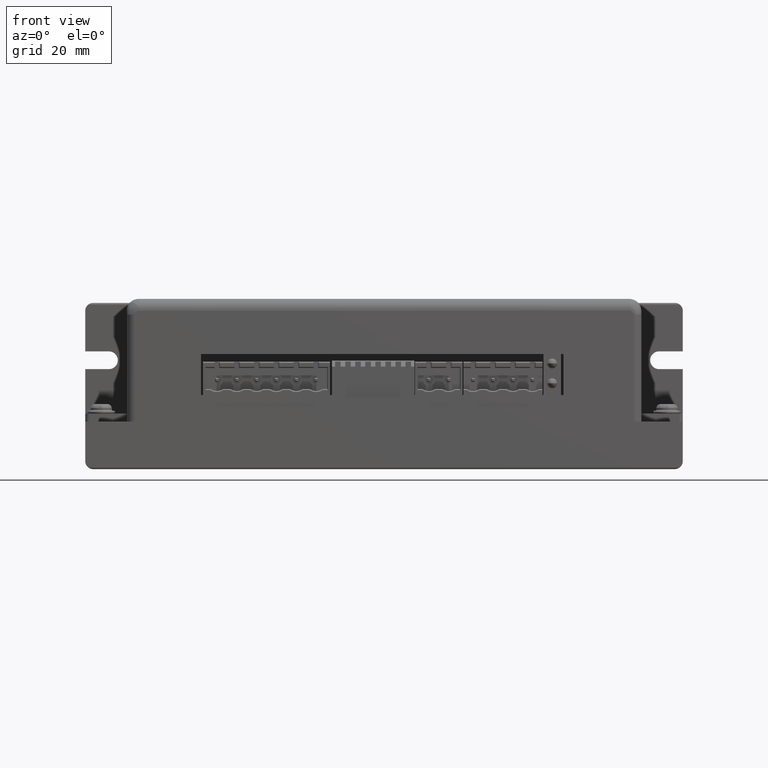
[diagram: clean part render]
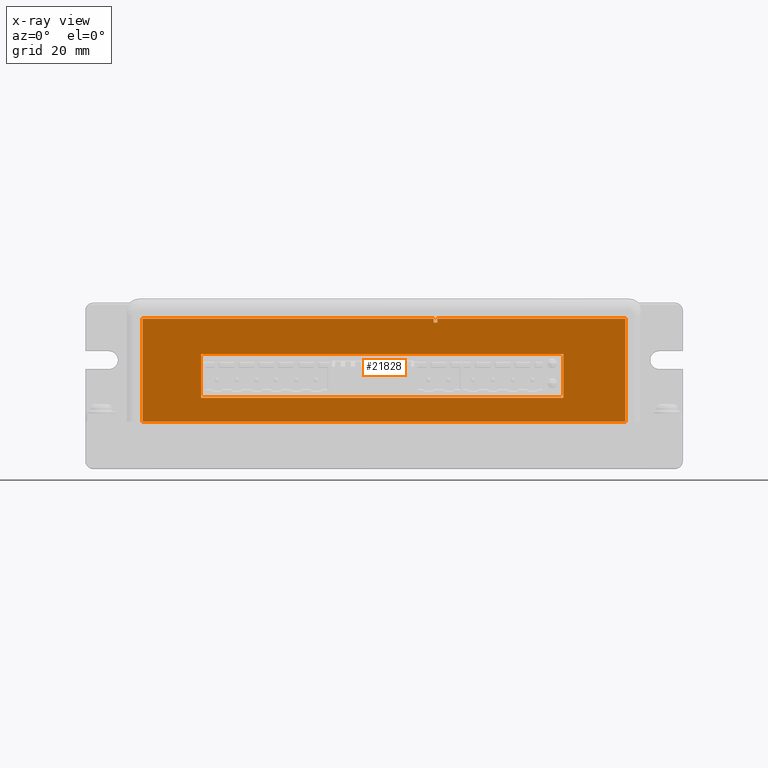
[diagram: x-ray — body ghosted, one internal face saturated and labeled with its STEP entity id]
A machine part, front view, then the same camera in x-ray: the body is ghosted and one INTERNAL B-rep face — a face not visible from any outside direction — is saturated and labeled: STEP entity #21828.
In plain terms, the highlighted planar face has unit normal (0, -1, 0).
Its self-contained STEP definition (entity closure, byte-faithful):
#339 = VECTOR ( 'NONE', #12619, 39.37007874015748100 ) ;
#661 = CARTESIAN_POINT ( 'NONE',  ( 0.5314960629921279300, -1.751968503937038500, -0.1968503937007881300 ) ) ;
#1221 = DIRECTION ( 'NONE',  ( -1.000000000000000000, -0.0000000000000000000, -0.0000000000000000000 ) ) ;
#1431 = DIRECTION ( 'NONE',  ( -1.000000000000000000, -0.0000000000000000000, -0.0000000000000000000 ) ) ;
#1725 = EDGE_CURVE ( 'NONE', #27381, #35647, #19201, .T. ) ;
#1859 = VECTOR ( 'NONE', #32172, 39.37007874015748100 ) ;
#3548 = VERTEX_POINT ( 'NONE', #36261 ) ;
#3660 = VECTOR ( 'NONE', #10219, 39.37007874015748100 ) ;
#4692 = DIRECTION ( 'NONE',  ( -0.0000000000000000000, -0.0000000000000000000, 1.000000000000000000 ) ) ;
#4747 = AXIS2_PLACEMENT_3D ( 'NONE', #53560, #27875, #19441 ) ;
#4828 = ORIENTED_EDGE ( 'NONE', *, *, #48407, .F. ) ;
#5119 = VECTOR ( 'NONE', #4692, 39.37007874015748100 ) ;
#5554 = CARTESIAN_POINT ( 'NONE',  ( 1.855511811023624200, -1.751968503937091100, -0.5511811023622047400 ) ) ;
#6571 = DIRECTION ( 'NONE',  ( 1.000000000000000000, -0.0000000000000000000, 0.0000000000000000000 ) ) ;
#6842 = VERTEX_POINT ( 'NONE', #24417 ) ;
#7215 = VECTOR ( 'NONE', #16560, 39.37007874015748100 ) ;
#9789 = VERTEX_POINT ( 'NONE', #35426 ) ;
#9912 = LINE ( 'NONE', #12223, #7215 ) ;
#10219 = DIRECTION ( 'NONE',  ( -1.000000000000000000, -0.0000000000000000000, -0.0000000000000000000 ) ) ;
#10755 = EDGE_CURVE ( 'NONE', #16799, #22290, #14533, .T. ) ;
#11433 = CARTESIAN_POINT ( 'NONE',  ( -1.818897637795273700, -1.751968503937064000, -0.5511811023622097400 ) ) ;
#12223 = CARTESIAN_POINT ( 'NONE',  ( -3.091338582677163300, -1.751968503937037200, -1.220472440944881900 ) ) ;
#12619 = DIRECTION ( 'NONE',  ( 0.0000000000000000000, 0.0000000000000000000, 1.000000000000000000 ) ) ;
#12762 = CARTESIAN_POINT ( 'NONE',  ( 0.4921259842519702400, -1.751968503937040100, -0.1968503937007995400 ) ) ;
#14533 = LINE ( 'NONE', #46653, #54149 ) ;
#14561 = EDGE_CURVE ( 'NONE', #48593, #9789, #39691, .T. ) ;
#15064 = EDGE_LOOP ( 'NONE', ( #51034, #23251, #29555, #16388, #25752, #4828, #28270, #55128 ) ) ;
#15753 = DIRECTION ( 'NONE',  ( 0.0000000000000000000, 0.0000000000000000000, -1.000000000000000000 ) ) ;
#16388 = ORIENTED_EDGE ( 'NONE', *, *, #49705, .F. ) ;
#16560 = DIRECTION ( 'NONE',  ( 1.000000000000000000, -0.0000000000000000000, 0.0000000000000000000 ) ) ;
#16799 = VERTEX_POINT ( 'NONE', #11433 ) ;
#17304 = LINE ( 'NONE', #41444, #48144 ) ;
#17966 = CARTESIAN_POINT ( 'NONE',  ( 1.783464566929136000, -1.751968503937064000, -0.5511811023622050800 ) ) ;
#18764 = CARTESIAN_POINT ( 'NONE',  ( -1.890944881889762100, -1.751968503937091100, -0.9842519685039370400 ) ) ;
#19201 = LINE ( 'NONE', #22100, #5119 ) ;
#19441 = DIRECTION ( 'NONE',  ( 0.0000000000000000000, 0.0000000000000000000, -1.000000000000000000 ) ) ;
#19618 = CARTESIAN_POINT ( 'NONE',  ( -2.401574803149604700, -1.751968503937037200, -0.1763779527559055100 ) ) ;
#19875 = VERTEX_POINT ( 'NONE', #31874 ) ;
#21084 = LINE ( 'NONE', #42269, #339 ) ;
#21513 = CARTESIAN_POINT ( 'NONE',  ( 1.783464566929136000, -1.751968503937064000, -0.9842519685039320400 ) ) ;
#21828 = ADVANCED_FACE ( 'NONE', ( #22455, #36447 ), #40630, .F. ) ;
#22100 = CARTESIAN_POINT ( 'NONE',  ( 1.783464566929136000, -1.751968503937091100, -0.9930056005942126100 ) ) ;
#22290 = VERTEX_POINT ( 'NONE', #50706 ) ;
#22455 = FACE_BOUND ( 'NONE', #33114, .T. ) ;
#22825 = VECTOR ( 'NONE', #1431, 39.37007874015748100 ) ;
#23251 = ORIENTED_EDGE ( 'NONE', *, *, #27727, .F. ) ;
#23324 = LINE ( 'NONE', #19618, #1859 ) ;
#23592 = VECTOR ( 'NONE', #48893, 39.37007874015748100 ) ;
#24417 = CARTESIAN_POINT ( 'NONE',  ( 2.401574803149616700, -1.751968503937035600, -1.220472440944881900 ) ) ;
#25461 = ORIENTED_EDGE ( 'NONE', *, *, #1725, .T. ) ;
#25752 = ORIENTED_EDGE ( 'NONE', *, *, #51232, .F. ) ;
#26239 = VERTEX_POINT ( 'NONE', #661 ) ;
#26584 = VERTEX_POINT ( 'NONE', #28550 ) ;
#27089 = EDGE_CURVE ( 'NONE', #22290, #27381, #55610, .T. ) ;
#27381 = VERTEX_POINT ( 'NONE', #21513 ) ;
#27481 = LINE ( 'NONE', #37775, #38903 ) ;
#27727 = EDGE_CURVE ( 'NONE', #9789, #19875, #23324, .T. ) ;
#27875 = DIRECTION ( 'NONE',  ( 0.0000000000000000000, -1.000000000000000000, 0.0000000000000000000 ) ) ;
#28270 = ORIENTED_EDGE ( 'NONE', *, *, #41506, .F. ) ;
#28550 = CARTESIAN_POINT ( 'NONE',  ( 2.401574803149608300, -1.751968503937037200, -0.1968503937007828100 ) ) ;
#29063 = ORIENTED_EDGE ( 'NONE', *, *, #27089, .T. ) ;
#29555 = ORIENTED_EDGE ( 'NONE', *, *, #14561, .F. ) ;
#31414 = CARTESIAN_POINT ( 'NONE',  ( 0.5314960629921278200, -1.751968503937037800, -0.2362204724409482400 ) ) ;
#31874 = CARTESIAN_POINT ( 'NONE',  ( -2.401574803149602900, -1.751968503937038500, -1.220472440944881900 ) ) ;
#32172 = DIRECTION ( 'NONE',  ( 0.0000000000000000000, 0.0000000000000000000, -1.000000000000000000 ) ) ;
#33039 = LINE ( 'NONE', #40799, #23592 ) ;
#33114 = EDGE_LOOP ( 'NONE', ( #25461, #46045, #46936, #29063 ) ) ;
#34304 = VERTEX_POINT ( 'NONE', #31414 ) ;
#34392 = EDGE_CURVE ( 'NONE', #6842, #26584, #27481, .T. ) ;
#35426 = CARTESIAN_POINT ( 'NONE',  ( -2.401574803149603800, -1.751968503937042700, -0.1968503937007997400 ) ) ;
#35647 = VERTEX_POINT ( 'NONE', #17966 ) ;
#36261 = CARTESIAN_POINT ( 'NONE',  ( 0.4921259842519701300, -1.751968503937037200, -0.2362204724409463500 ) ) ;
#36447 = FACE_OUTER_BOUND ( 'NONE', #15064, .T. ) ;
#37775 = CARTESIAN_POINT ( 'NONE',  ( 2.401574803149614900, -1.751968503937030700, -1.241732283464567000 ) ) ;
#38903 = VECTOR ( 'NONE', #55208, 39.37007874015748100 ) ;
#39691 = LINE ( 'NONE', #52486, #22825 ) ;
#40195 = CARTESIAN_POINT ( 'NONE',  ( 2.497637795275592200, -1.751968503937037200, -0.1968503937007793100 ) ) ;
#40630 = PLANE ( 'NONE',  #4747 ) ;
#40799 = CARTESIAN_POINT ( 'NONE',  ( 2.497637795275592200, -1.751968503937037200, -0.2362204724409493200 ) ) ;
#40835 = VECTOR ( 'NONE', #1221, 39.37007874015748100 ) ;
#41444 = CARTESIAN_POINT ( 'NONE',  ( 0.5314960629921278200, -1.751968503937038700, -0.1093566041303149400 ) ) ;
#41506 = EDGE_CURVE ( 'NONE', #26584, #26239, #47283, .T. ) ;
#42269 = CARTESIAN_POINT ( 'NONE',  ( 0.4921259842519702900, -1.751968503937037600, -0.1093566041303149400 ) ) ;
#44192 = VECTOR ( 'NONE', #6571, 39.37007874015748100 ) ;
#46045 = ORIENTED_EDGE ( 'NONE', *, *, #47450, .T. ) ;
#46653 = CARTESIAN_POINT ( 'NONE',  ( -1.818897637795273500, -1.751968503937091100, -0.5424274702719291700 ) ) ;
#46936 = ORIENTED_EDGE ( 'NONE', *, *, #10755, .T. ) ;
#47283 = LINE ( 'NONE', #40195, #3660 ) ;
#47450 = EDGE_CURVE ( 'NONE', #35647, #16799, #52277, .T. ) ;
#48144 = VECTOR ( 'NONE', #15753, 39.37007874015748100 ) ;
#48407 = EDGE_CURVE ( 'NONE', #26239, #34304, #17304, .T. ) ;
#48593 = VERTEX_POINT ( 'NONE', #12762 ) ;
#48893 = DIRECTION ( 'NONE',  ( -1.000000000000000000, -0.0000000000000000000, -0.0000000000000000000 ) ) ;
#49705 = EDGE_CURVE ( 'NONE', #3548, #48593, #21084, .T. ) ;
#50613 = DIRECTION ( 'NONE',  ( -0.0000000000000000000, -0.0000000000000000000, -1.000000000000000000 ) ) ;
#50706 = CARTESIAN_POINT ( 'NONE',  ( -1.818897637795273700, -1.751968503937064000, -0.9842519685039368100 ) ) ;
#51034 = ORIENTED_EDGE ( 'NONE', *, *, #52228, .F. ) ;
#51232 = EDGE_CURVE ( 'NONE', #34304, #3548, #33039, .T. ) ;
#52228 = EDGE_CURVE ( 'NONE', #19875, #6842, #9912, .T. ) ;
#52277 = LINE ( 'NONE', #5554, #40835 ) ;
#52486 = CARTESIAN_POINT ( 'NONE',  ( 2.497637795275592200, -1.751968503937037200, -0.1968503937008025400 ) ) ;
#53560 = CARTESIAN_POINT ( 'NONE',  ( 2.497637795275592200, -1.751968503937037200, -0.1763779527559055100 ) ) ;
#54149 = VECTOR ( 'NONE', #50613, 39.37007874015748100 ) ;
#55128 = ORIENTED_EDGE ( 'NONE', *, *, #34392, .F. ) ;
#55208 = DIRECTION ( 'NONE',  ( 0.0000000000000000000, 0.0000000000000000000, 1.000000000000000000 ) ) ;
#55610 = LINE ( 'NONE', #18764, #44192 ) ;